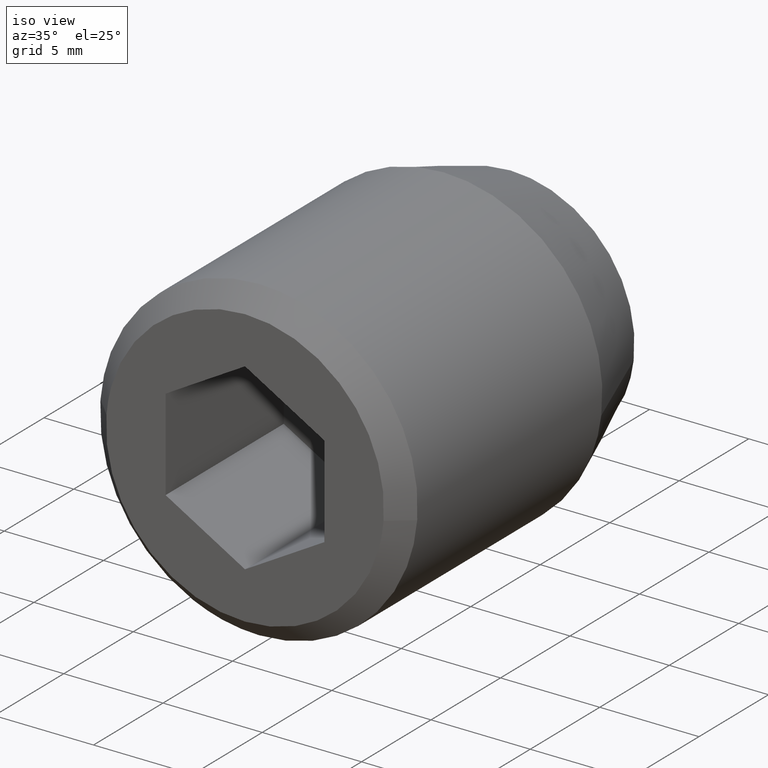
[diagram: clean part render]
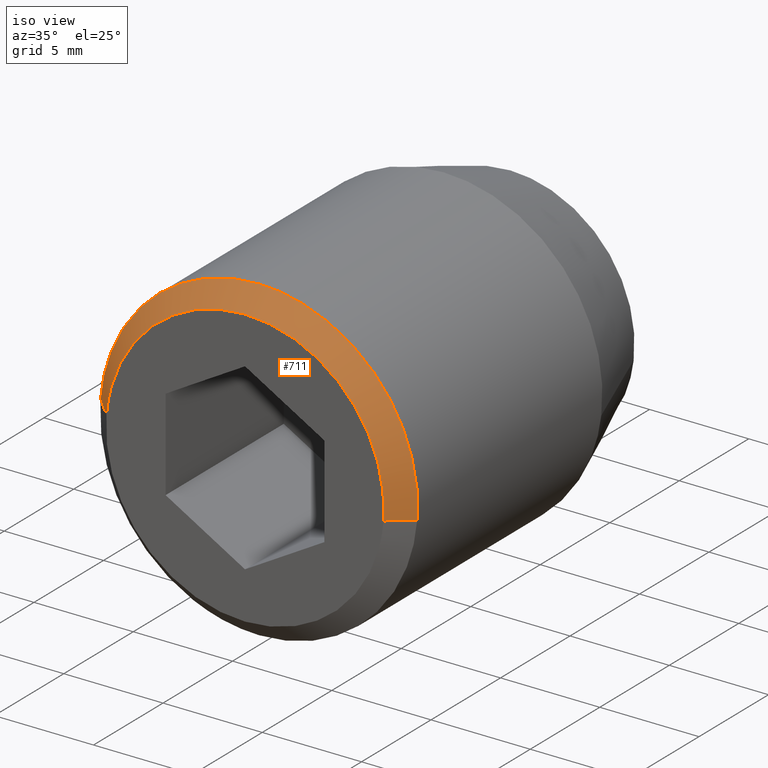
[diagram: same view with one face highlighted and labeled with its STEP entity id]
A machine part, iso view. The second image highlights one B-rep face of the part: STEP entity #711.
In plain terms, the highlighted face is a freeform B-spline surface patch.
Its self-contained STEP definition (entity closure, byte-faithful):
#349=CARTESIAN_POINT('',(-7.975338669865801,-18.099999999998040,0.627672765837859));
#350=VERTEX_POINT('',#349);
#364=CARTESIAN_POINT('',(0.0,-18.100000000000001,7.999999999999998));
#365=VERTEX_POINT('',#364);
#366=CARTESIAN_POINT('',(0.0,-18.100000000000001,7.999999999999998));
#367=CARTESIAN_POINT('',(-7.395123933237853,-18.099999999999991,7.999999999999999));
#368=CARTESIAN_POINT('',(-7.975338669865801,-18.099999999998044,0.627672765837859));
#376=(BOUNDED_CURVE()B_SPLINE_CURVE(2,(#366,#367,#368),.UNSPECIFIED.,.F.,.U.)B_SPLINE_CURVE_WITH_KNOTS((3,3),(0.500000000000000,0.736331300632124),.UNSPECIFIED.)CURVE()GEOMETRIC_REPRESENTATION_ITEM()RATIONAL_B_SPLINE_CURVE((1.0,0.723120658605950,0.969723356170475))REPRESENTATION_ITEM(''));
#377=EDGE_CURVE('',#365,#350,#376,.T.);
#379=CARTESIAN_POINT('',(7.975338669865801,-18.099999999998040,-0.627672765837861));
#380=VERTEX_POINT('',#379);
#381=CARTESIAN_POINT('',(7.975338669865801,-18.099999999998044,-0.627672765837861));
#382=CARTESIAN_POINT('',(8.0,-18.100000000000001,-0.314320856076372));
#383=CARTESIAN_POINT('',(8.0,-18.100000000000001,-1.291960E-015));
#384=CARTESIAN_POINT('',(8.0,-18.099999999999998,7.999999999999999));
#385=CARTESIAN_POINT('',(0.0,-18.100000000000001,7.999999999999998));
#393=(BOUNDED_CURVE()B_SPLINE_CURVE(2,(#381,#382,#383,#384,#385),.UNSPECIFIED.,.F.,.U.)B_SPLINE_CURVE_WITH_KNOTS((3,2,3),(0.236331300632125,0.250000000000000,0.500000000000000),.UNSPECIFIED.)CURVE()GEOMETRIC_REPRESENTATION_ITEM()RATIONAL_B_SPLINE_CURVE((0.969723356170475,0.983986122580598,1.0,0.707106781186548,1.0))REPRESENTATION_ITEM(''));
#394=EDGE_CURVE('',#380,#365,#393,.T.);
#608=CARTESIAN_POINT('',(6.978421336133015,-19.099999999997181,-0.549213670116594));
#609=VERTEX_POINT('',#608);
#623=CARTESIAN_POINT('',(-6.978421336133015,-19.099999999997181,0.549213670116592));
#624=VERTEX_POINT('',#623);
#640=CARTESIAN_POINT('',(-6.978421336133015,-19.099999999997181,0.549213670116592));
#641=CARTESIAN_POINT('',(-7.975338669865801,-18.099999999998040,0.627672765837859));
#642=QUASI_UNIFORM_CURVE('',1,(#640,#641),.UNSPECIFIED.,.F.,.U.);
#643=EDGE_CURVE('',#624,#350,#642,.T.);
#649=CARTESIAN_POINT('',(6.978421336133015,-19.099999999997181,-0.549213670116594));
#650=CARTESIAN_POINT('',(7.975338669865801,-18.099999999998040,-0.627672765837861));
#651=QUASI_UNIFORM_CURVE('',1,(#649,#650),.UNSPECIFIED.,.F.,.U.);
#652=EDGE_CURVE('',#609,#380,#651,.T.);
#657=CARTESIAN_POINT('',(-6.953498402788563,-19.125000000000000,0.547252192701721));
#658=CARTESIAN_POINT('',(-6.406246210086841,-19.124999999999996,7.500750595490285));
#659=CARTESIAN_POINT('',(0.547252192701722,-19.125000000000000,6.953498402788562));
#660=CARTESIAN_POINT('',(7.500750595490285,-19.124999999999996,6.406246210086841));
#661=CARTESIAN_POINT('',(6.953498402788563,-19.125000000000000,-0.547252192701724));
#662=CARTESIAN_POINT('',(-8.000884676541935,-18.074375000000000,0.629683280150789));
#663=CARTESIAN_POINT('',(-7.371201396391145,-18.074374999999993,8.630567956692724));
#664=CARTESIAN_POINT('',(0.629683280150791,-18.074375000000000,8.000884676541933));
#665=CARTESIAN_POINT('',(8.630567956692726,-18.074374999999993,7.371201396391142));
#666=CARTESIAN_POINT('',(8.000884676541935,-18.074375000000000,-0.629683280150792));
#674=(BOUNDED_SURFACE()B_SPLINE_SURFACE(2,1,((#657,#662),(#658,#663),(#659,#664),(#660,#665),(#661,#666)),.UNSPECIFIED.,.F.,.F.,.U.)B_SPLINE_SURFACE_WITH_KNOTS((3,2,3),(2,2),(0.0,13.297290886082280,26.594581772164560),(0.0,1.0),.UNSPECIFIED.)GEOMETRIC_REPRESENTATION_ITEM()RATIONAL_B_SPLINE_SURFACE(((1.0,1.0),(0.707106781186548,0.707106781186548),(1.0,1.0),(0.707106781186548,0.707106781186548),(1.0,1.0)))REPRESENTATION_ITEM('')SURFACE());
#675=CARTESIAN_POINT('',(0.0,-19.100000000000001,6.999999999999999));
#676=VERTEX_POINT('',#675);
#677=CARTESIAN_POINT('',(6.978421336133015,-19.099999999997184,-0.549213670116594));
#678=CARTESIAN_POINT('',(7.0,-19.099999999999994,-0.275030749075243));
#679=CARTESIAN_POINT('',(7.0,-19.100000000000001,-1.291960E-015));
#680=CARTESIAN_POINT('',(6.999999999999999,-19.099999999999991,6.999999999999999));
#681=CARTESIAN_POINT('',(0.0,-19.100000000000001,6.999999999999999));
#689=(BOUNDED_CURVE()B_SPLINE_CURVE(2,(#677,#678,#679,#680,#681),.UNSPECIFIED.,.F.,.U.)B_SPLINE_CURVE_WITH_KNOTS((3,2,3),(0.236331300631713,0.250000000000000,0.500000000000000),.UNSPECIFIED.)CURVE()GEOMETRIC_REPRESENTATION_ITEM()RATIONAL_B_SPLINE_CURVE((0.969723356169616,0.983986122580116,1.0,0.707106781186547,1.0))REPRESENTATION_ITEM(''));
#690=EDGE_CURVE('',#609,#676,#689,.T.);
#691=ORIENTED_EDGE('',*,*,#690,.F.);
#692=ORIENTED_EDGE('',*,*,#652,.T.);
#693=ORIENTED_EDGE('',*,*,#394,.T.);
#694=ORIENTED_EDGE('',*,*,#377,.T.);
#695=ORIENTED_EDGE('',*,*,#643,.F.);
#696=CARTESIAN_POINT('',(0.0,-19.100000000000001,6.999999999999999));
#697=CARTESIAN_POINT('',(-6.470733441567567,-19.100000000000005,6.999999999999999));
#698=CARTESIAN_POINT('',(-6.978421336133015,-19.099999999997188,0.549213670116592));
#706=(BOUNDED_CURVE()B_SPLINE_CURVE(2,(#696,#697,#698),.UNSPECIFIED.,.F.,.U.)B_SPLINE_CURVE_WITH_KNOTS((3,3),(0.500000000000000,0.736331300631714),.UNSPECIFIED.)CURVE()GEOMETRIC_REPRESENTATION_ITEM()RATIONAL_B_SPLINE_CURVE((1.0,0.723120658606431,0.969723356169617))REPRESENTATION_ITEM(''));
#707=EDGE_CURVE('',#676,#624,#706,.T.);
#708=ORIENTED_EDGE('',*,*,#707,.F.);
#709=EDGE_LOOP('',(#691,#692,#693,#694,#695,#708));
#710=FACE_OUTER_BOUND('',#709,.T.);
#711=ADVANCED_FACE('',(#710),#674,.T.);